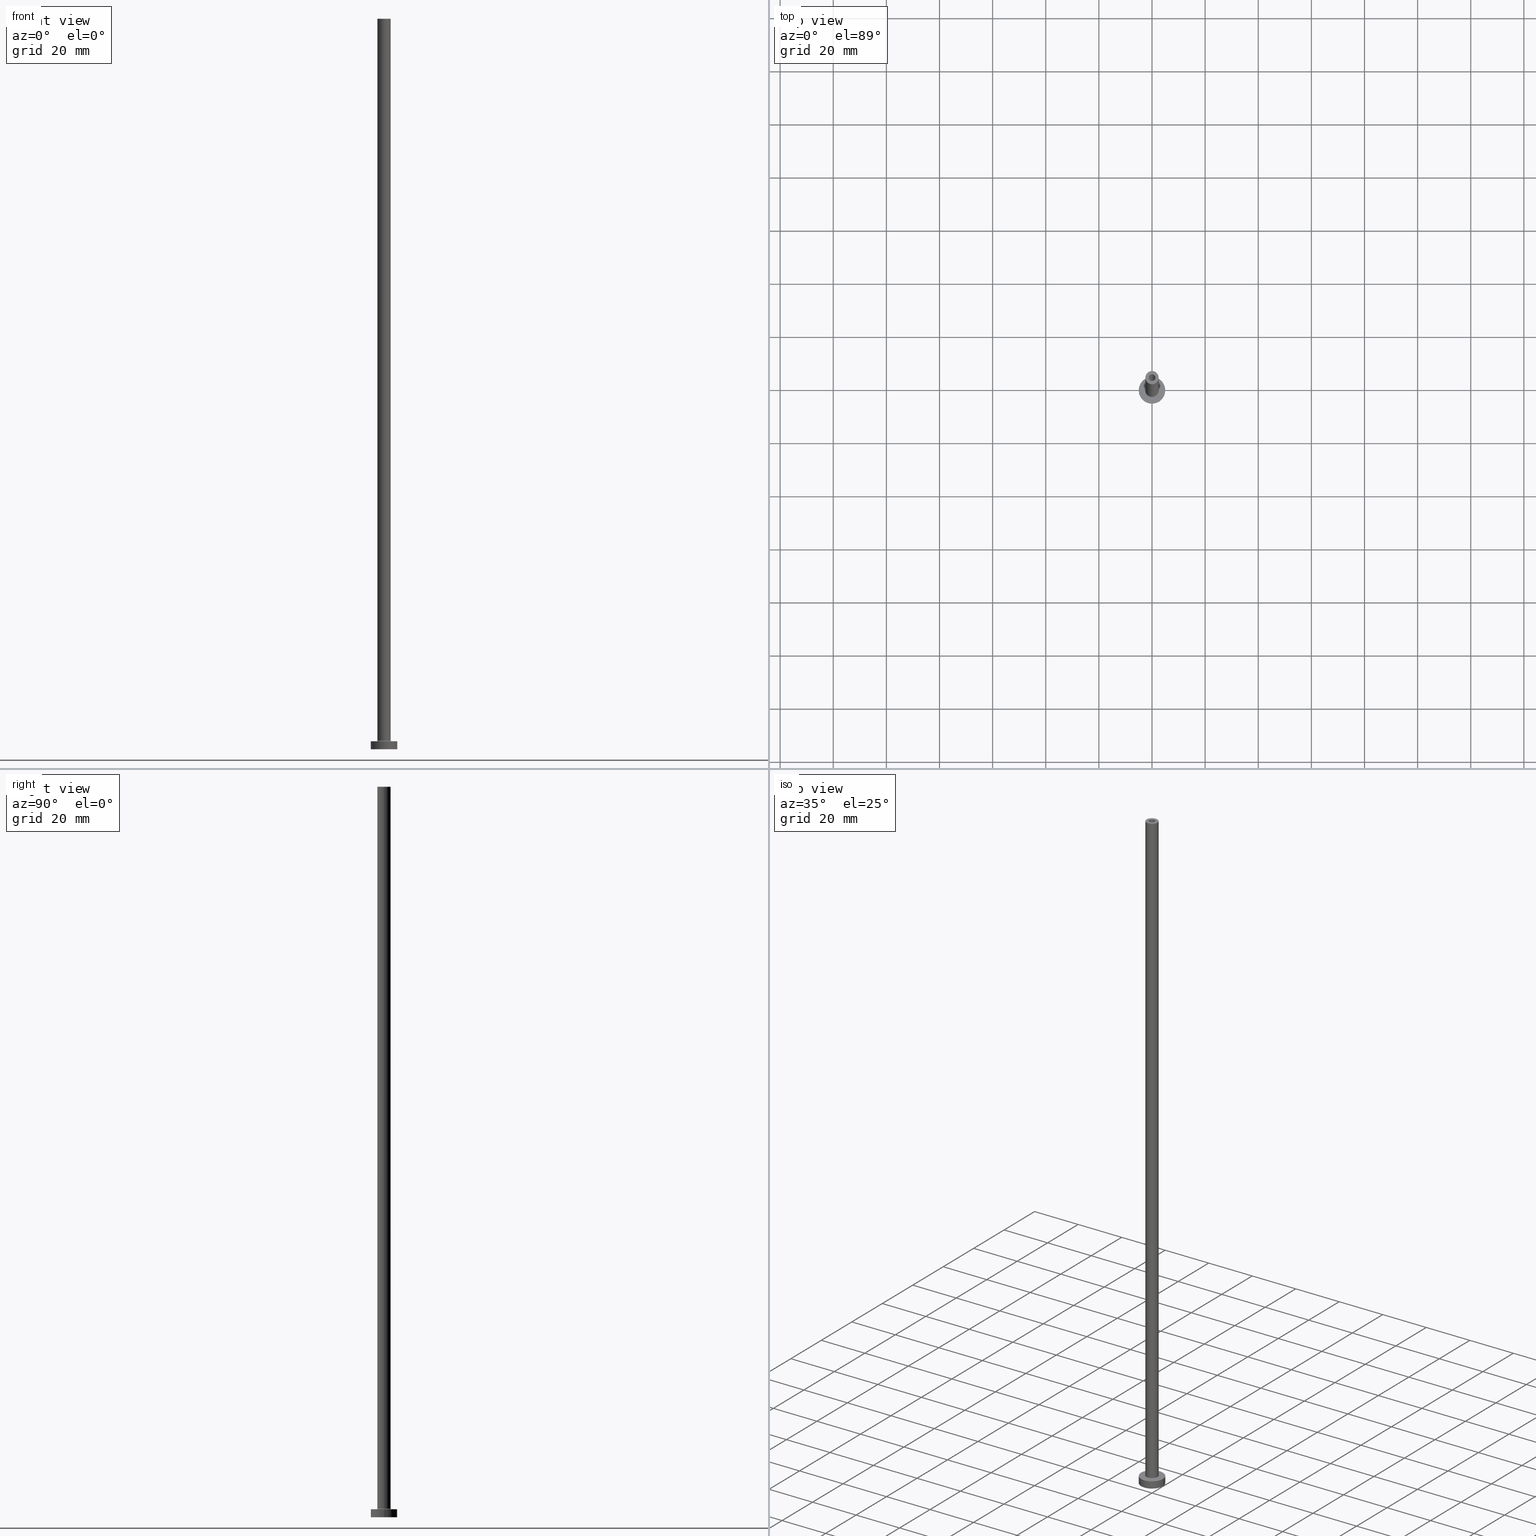
[diagram: canonical four-view strip — front | top / right | iso, engineering-drawing reading convention]
A machine part, canonical four-view strip (front | top / right | iso — engineering-drawing reading convention). The complete STEP part file that produces these views, byte-faithful:
ISO-10303-21;
HEADER;
FILE_DESCRIPTION (( 'STEP AP203' ),
    '1' );
FILE_NAME ('1b13.STEP',
    '2023-02-13T18:04:47',
    ( '' ),
    ( '' ),
    'SwSTEP 2.0',
    'SolidWorks 2019',
    '' );
FILE_SCHEMA (( 'CONFIG_CONTROL_DESIGN' ));
ENDSEC;

DATA;
#1 = VERTEX_POINT ( 'NONE', #81 ) ;
#2 = AXIS2_PLACEMENT_3D ( 'NONE', #13, #190, #305 ) ;
#3 = CARTESIAN_POINT ( 'NONE',  ( -2.799999999999999822, 3.429011037612589276E-16, 3.000000000000012434 ) ) ;
#4 = EDGE_CURVE ( 'NONE', #258, #306, #291, .T. ) ;
#5 = ORIENTED_EDGE ( 'NONE', *, *, #220, .T. ) ;
#6 = CARTESIAN_POINT ( 'NONE',  ( 5.000000000000000000, 6.123233995736766282E-16, 0.000000000000000000 ) ) ;
#7 = LINE ( 'NONE', #285, #134 ) ;
#8 = CIRCLE ( 'NONE', #44, 2.500000000000000000 ) ;
#9 = ORIENTED_EDGE ( 'NONE', *, *, #144, .T. ) ;
#10 = ADVANCED_FACE ( 'NONE', ( #380 ), #368, .F. ) ;
#11 = TOROIDAL_SURFACE ( 'NONE', #442, 2.799999999999999822, 0.2999999999999999889 ) ;
#12 = DIRECTION ( 'NONE',  ( 0.000000000000000000, 0.000000000000000000, 1.000000000000000000 ) ) ;
#13 = CARTESIAN_POINT ( 'NONE',  ( 0.000000000000000000, 0.000000000000000000, 3.000000000000000000 ) ) ;
#14 = VERTEX_POINT ( 'NONE', #226 ) ;
#15 = ORIENTED_EDGE ( 'NONE', *, *, #123, .T. ) ;
#16 = CARTESIAN_POINT ( 'NONE',  ( -5.000000000000000000, 0.000000000000000000, 3.000000000000000000 ) ) ;
#17 = AXIS2_PLACEMENT_3D ( 'NONE', #137, #422, #350 ) ;
#18 = ORIENTED_EDGE ( 'NONE', *, *, #243, .T. ) ;
#19 = ORIENTED_EDGE ( 'NONE', *, *, #179, .T. ) ;
#20 = DATE_TIME_ROLE ( 'creation_date' ) ;
#21 = DIRECTION ( 'NONE',  ( 1.000000000000000000, 0.000000000000000000, 0.000000000000000000 ) ) ;
#22 = EDGE_CURVE ( 'NONE', #14, #107, #239, .T. ) ;
#23 = CARTESIAN_POINT ( 'NONE',  ( -1.399999999999999911, 0.000000000000000000, 240.0000000000000284 ) ) ;
#24 = AXIS2_PLACEMENT_3D ( 'NONE', #257, #192, #194 ) ;
#25 = DATE_AND_TIME ( #202, #117 ) ;
#26 = DIRECTION ( 'NONE',  ( 0.000000000000000000, 0.000000000000000000, -1.000000000000000000 ) ) ;
#27 = DATE_AND_TIME ( #172, #126 ) ;
#28 = DIRECTION ( 'NONE',  ( 0.000000000000000000, 0.000000000000000000, 1.000000000000000000 ) ) ;
#29 = EDGE_CURVE ( 'NONE', #306, #258, #382, .T. ) ;
#30 = DIRECTION ( 'NONE',  ( 0.000000000000000000, 0.000000000000000000, 1.000000000000000000 ) ) ;
#31 = CARTESIAN_POINT ( 'NONE',  ( 5.000000000000000000, 6.123233995736766282E-16, 3.000000000000000000 ) ) ;
#32 = AXIS2_PLACEMENT_3D ( 'NONE', #323, #288, #329 ) ;
#33 = PLANE ( 'NONE',  #60 ) ;
#34 = DIRECTION ( 'NONE',  ( 0.000000000000000000, 0.000000000000000000, 1.000000000000000000 ) ) ;
#35 = AXIS2_PLACEMENT_3D ( 'NONE', #140, #94, #203 ) ;
#36 = DIRECTION ( 'NONE',  ( 1.000000000000000000, 0.000000000000000000, 0.000000000000000000 ) ) ;
#37 = ORIENTED_EDGE ( 'NONE', *, *, #254, .T. ) ;
#38 = AXIS2_PLACEMENT_3D ( 'NONE', #66, #28, #320 ) ;
#39 = AXIS2_PLACEMENT_3D ( 'NONE', #47, #12, #371 ) ;
#40 = DIRECTION ( 'NONE',  ( 1.224646799147353207E-16, 1.000000000000000000, -0.000000000000000000 ) ) ;
#41 = DIRECTION ( 'NONE',  ( 0.000000000000000000, 0.000000000000000000, 1.000000000000000000 ) ) ;
#42 = ORIENTED_EDGE ( 'NONE', *, *, #423, .T. ) ;
#43 = CARTESIAN_POINT ( 'NONE',  ( 0.000000000000000000, 0.000000000000000000, 3.000000000000000000 ) ) ;
#44 = AXIS2_PLACEMENT_3D ( 'NONE', #424, #99, #56 ) ;
#45 = CARTESIAN_POINT ( 'NONE',  ( 1.399999999999999911, 1.714505518806294145E-16, 0.000000000000000000 ) ) ;
#46 = VERTEX_POINT ( 'NONE', #102 ) ;
#47 = CARTESIAN_POINT ( 'NONE',  ( 0.000000000000000000, 0.000000000000000000, 275.0000000000000000 ) ) ;
#48 = ORIENTED_EDGE ( 'NONE', *, *, #29, .F. ) ;
#49 = FACE_BOUND ( 'NONE', #221, .T. ) ;
#50 = ORIENTED_EDGE ( 'NONE', *, *, #251, .T. ) ;
#51 = CARTESIAN_POINT ( 'NONE',  ( 0.000000000000000000, 0.000000000000000000, 275.0000000000000000 ) ) ;
#52 =( GEOMETRIC_REPRESENTATION_CONTEXT ( 3 ) GLOBAL_UNCERTAINTY_ASSIGNED_CONTEXT ( ( #400 ) ) GLOBAL_UNIT_ASSIGNED_CONTEXT ( ( #335, #299, #260 ) ) REPRESENTATION_CONTEXT ( 'NONE', 'WORKASPACE' ) );
#53 = ORIENTED_EDGE ( 'NONE', *, *, #55, .T. ) ;
#54 = VERTEX_POINT ( 'NONE', #23 ) ;
#55 = EDGE_CURVE ( 'NONE', #186, #76, #65, .T. ) ;
#56 = DIRECTION ( 'NONE',  ( 1.000000000000000000, 0.000000000000000000, 0.000000000000000000 ) ) ;
#57 = AXIS2_PLACEMENT_3D ( 'NONE', #420, #177, #351 ) ;
#58 = PERSON_AND_ORGANIZATION ( #307, #405 ) ;
#59 = CYLINDRICAL_SURFACE ( 'NONE', #312, 2.500000000000000000 ) ;
#60 = AXIS2_PLACEMENT_3D ( 'NONE', #429, #353, #255 ) ;
#61 = EDGE_CURVE ( 'NONE', #448, #119, #246, .T. ) ;
#62 = DIRECTION ( 'NONE',  ( 1.000000000000000000, 0.000000000000000000, 0.000000000000000000 ) ) ;
#63 = DIRECTION ( 'NONE',  ( 0.000000000000000000, 0.000000000000000000, -1.000000000000000000 ) ) ;
#64 = APPROVAL_ROLE ( '' ) ;
#65 = LINE ( 'NONE', #311, #104 ) ;
#66 = CARTESIAN_POINT ( 'NONE',  ( 0.000000000000000000, 0.000000000000000000, 3.000000000000000000 ) ) ;
#67 = CIRCLE ( 'NONE', #327, 2.500000000000000000 ) ;
#68 = DIRECTION ( 'NONE',  ( 0.000000000000000000, 0.000000000000000000, -1.000000000000000000 ) ) ;
#69 = EDGE_CURVE ( 'NONE', #107, #357, #8, .T. ) ;
#70 = DIRECTION ( 'NONE',  ( 0.000000000000000000, 0.000000000000000000, 1.000000000000000000 ) ) ;
#71 = ORIENTED_EDGE ( 'NONE', *, *, #292, .F. ) ;
#72 = FACE_OUTER_BOUND ( 'NONE', #129, .T. ) ;
#73 = ORIENTED_EDGE ( 'NONE', *, *, #204, .F. ) ;
#74 = LOCAL_TIME ( 19, 4, 47.00000000000000000, #274 ) ;
#75 = APPROVAL ( #418, 'NEUR�EN�' ) ;
#76 = VERTEX_POINT ( 'NONE', #173 ) ;
#77 = DIRECTION ( 'NONE',  ( 1.000000000000000000, 0.000000000000000000, 0.000000000000000000 ) ) ;
#78 = AXIS2_PLACEMENT_3D ( 'NONE', #282, #235, #381 ) ;
#79 = PLANE ( 'NONE',  #90 ) ;
#80 = VECTOR ( 'NONE', #450, 1000.000000000000000 ) ;
#81 = CARTESIAN_POINT ( 'NONE',  ( 5.000000000000000000, 6.123233995736766282E-16, 3.000000000000000000 ) ) ;
#82 = DIRECTION ( 'NONE',  ( -1.000000000000000000, 0.000000000000000000, 0.000000000000000000 ) ) ;
#83 = EDGE_CURVE ( 'NONE', #46, #298, #316, .T. ) ;
#84 = FACE_BOUND ( 'NONE', #163, .T. ) ;
#85 = ORIENTED_EDGE ( 'NONE', *, *, #22, .T. ) ;
#86 = FACE_OUTER_BOUND ( 'NONE', #308, .T. ) ;
#87 = ORIENTED_EDGE ( 'NONE', *, *, #164, .F. ) ;
#88 = PERSON_AND_ORGANIZATION_ROLE ( 'classification_officer' ) ;
#89 = ADVANCED_FACE ( 'NONE', ( #242 ), #419, .F. ) ;
#90 = AXIS2_PLACEMENT_3D ( 'NONE', #156, #122, #165 ) ;
#91 = EDGE_LOOP ( 'NONE', ( #71, #85, #166, #342 ) ) ;
#92 = DESIGN_CONTEXT ( 'detailed design', #297, 'design' ) ;
#93 = PERSON_AND_ORGANIZATION ( #307, #405 ) ;
#94 = DIRECTION ( 'NONE',  ( 0.000000000000000000, 0.000000000000000000, 1.000000000000000000 ) ) ;
#95 = APPLICATION_PROTOCOL_DEFINITION ( 'international standard', 'config_control_design', 1994, #297 ) ;
#96 = FACE_OUTER_BOUND ( 'NONE', #115, .T. ) ;
#97 = EDGE_CURVE ( 'NONE', #1, #258, #211, .T. ) ;
#98 = PERSON_AND_ORGANIZATION ( #307, #405 ) ;
#99 = DIRECTION ( 'NONE',  ( 0.000000000000000000, 0.000000000000000000, 1.000000000000000000 ) ) ;
#100 = CIRCLE ( 'NONE', #385, 2.500000000000000000 ) ;
#101 = DATE_AND_TIME ( #200, #263 ) ;
#102 = CARTESIAN_POINT ( 'NONE',  ( 1.250000000000000000, 1.530808498934191571E-16, 275.0000000000000000 ) ) ;
#103 = FACE_OUTER_BOUND ( 'NONE', #91, .T. ) ;
#104 = VECTOR ( 'NONE', #26, 1000.000000000000000 ) ;
#105 = DIRECTION ( 'NONE',  ( 0.000000000000000000, -1.000000000000000000, 0.000000000000000000 ) ) ;
#106 = EDGE_CURVE ( 'NONE', #428, #1, #440, .T. ) ;
#107 = VERTEX_POINT ( 'NONE', #346 ) ;
#108 = AXIS2_PLACEMENT_3D ( 'NONE', #325, #362, #77 ) ;
#109 = CC_DESIGN_APPROVAL ( #376, ( #155 ) ) ;
#110 = CARTESIAN_POINT ( 'NONE',  ( 0.000000000000000000, 0.000000000000000000, 275.0000000000000000 ) ) ;
#111 = VERTEX_POINT ( 'NONE', #171 ) ;
#112 = DIRECTION ( 'NONE',  ( -0.000000000000000000, -0.000000000000000000, -1.000000000000000000 ) ) ;
#113 = ORIENTED_EDGE ( 'NONE', *, *, #4, .F. ) ;
#114 = ADVANCED_FACE ( 'NONE', ( #103 ), #386, .T. ) ;
#115 = EDGE_LOOP ( 'NONE', ( #199, #340, #333, #414 ) ) ;
#116 = CIRCLE ( 'NONE', #38, 5.000000000000000000 ) ;
#117 = LOCAL_TIME ( 19, 4, 47.00000000000000000, #207 ) ;
#118 = CARTESIAN_POINT ( 'NONE',  ( 1.250000000000000000, 1.530808498934191571E-16, 240.0000000000000284 ) ) ;
#119 = VERTEX_POINT ( 'NONE', #417 ) ;
#120 = DIRECTION ( 'NONE',  ( 0.000000000000000000, 0.000000000000000000, 1.000000000000000000 ) ) ;
#121 = ORIENTED_EDGE ( 'NONE', *, *, #452, .T. ) ;
#122 = DIRECTION ( 'NONE',  ( 0.000000000000000000, 0.000000000000000000, 1.000000000000000000 ) ) ;
#123 = EDGE_CURVE ( 'NONE', #1, #428, #116, .T. ) ;
#124 = ORIENTED_EDGE ( 'NONE', *, *, #237, .F. ) ;
#125 = CIRCLE ( 'NONE', #32, 1.399999999999999911 ) ;
#126 = LOCAL_TIME ( 19, 4, 47.00000000000000000, #349 ) ;
#127 = DIRECTION ( 'NONE',  ( -0.000000000000000000, -0.000000000000000000, -1.000000000000000000 ) ) ;
#128 = ORIENTED_EDGE ( 'NONE', *, *, #251, .F. ) ;
#129 = EDGE_LOOP ( 'NONE', ( #48, #113 ) ) ;
#130 = ADVANCED_FACE ( 'NONE', ( #143 ), #314, .F. ) ;
#131 = FACE_OUTER_BOUND ( 'NONE', #338, .T. ) ;
#132 = CARTESIAN_POINT ( 'NONE',  ( 0.000000000000000000, 0.000000000000000000, 0.000000000000000000 ) ) ;
#133 = APPROVAL_ROLE ( '' ) ;
#134 = VECTOR ( 'NONE', #293, 1000.000000000000000 ) ;
#135 = CARTESIAN_POINT ( 'NONE',  ( 2.500000000000000000, 3.061616997868383141E-16, 275.0000000000000000 ) ) ;
#136 = CARTESIAN_POINT ( 'NONE',  ( 0.000000000000000000, 0.000000000000000000, 3.000000000000000000 ) ) ;
#137 = CARTESIAN_POINT ( 'NONE',  ( 0.000000000000000000, 0.000000000000000000, 0.000000000000000000 ) ) ;
#138 = EDGE_CURVE ( 'NONE', #411, #14, #100, .T. ) ;
#139 = APPROVAL_DATE_TIME ( #27, #376 ) ;
#140 = CARTESIAN_POINT ( 'NONE',  ( 0.000000000000000000, 0.000000000000000000, 3.000000000000000000 ) ) ;
#141 = APPROVAL_PERSON_ORGANIZATION ( #93, #75, #176 ) ;
#142 = APPLICATION_PROTOCOL_DEFINITION ( 'international standard', 'config_control_design', 1994, #181 ) ;
#143 = FACE_OUTER_BOUND ( 'NONE', #290, .T. ) ;
#144 = EDGE_CURVE ( 'NONE', #111, #267, #197, .T. ) ;
#145 = DIRECTION ( 'NONE',  ( 0.000000000000000000, 0.000000000000000000, 1.000000000000000000 ) ) ;
#146 = CARTESIAN_POINT ( 'NONE',  ( -5.000000000000000000, 0.000000000000000000, 3.000000000000000000 ) ) ;
#147 = EDGE_CURVE ( 'NONE', #119, #448, #427, .T. ) ;
#148 = EDGE_LOOP ( 'NONE', ( #87, #403 ) ) ;
#149 = FACE_OUTER_BOUND ( 'NONE', #223, .T. ) ;
#150 = ORIENTED_EDGE ( 'NONE', *, *, #123, .F. ) ;
#151 = AXIS2_PLACEMENT_3D ( 'NONE', #159, #300, #82 ) ;
#152 = CARTESIAN_POINT ( 'NONE',  ( 2.799999999999999822, 0.000000000000000000, 3.300000000000025135 ) ) ;
#153 = ORIENTED_EDGE ( 'NONE', *, *, #29, .T. ) ;
#154 = AXIS2_PLACEMENT_3D ( 'NONE', #393, #70, #214 ) ;
#155 = SECURITY_CLASSIFICATION ( '', '', #281 ) ;
#156 = CARTESIAN_POINT ( 'NONE',  ( 0.000000000000000000, 0.000000000000000000, 3.000000000000000000 ) ) ;
#157 = ORIENTED_EDGE ( 'NONE', *, *, #61, .F. ) ;
#158 = ADVANCED_FACE ( 'NONE', ( #96 ), #59, .T. ) ;
#159 = CARTESIAN_POINT ( 'NONE',  ( 0.000000000000000000, 0.000000000000000000, 275.0000000000000000 ) ) ;
#160 = ORIENTED_EDGE ( 'NONE', *, *, #254, .F. ) ;
#161 = APPROVAL_PERSON_ORGANIZATION ( #279, #317, #133 ) ;
#162 = CARTESIAN_POINT ( 'NONE',  ( -1.399999999999999911, 0.000000000000000000, 243.9597979746447152 ) ) ;
#163 = EDGE_LOOP ( 'NONE', ( #191, #42 ) ) ;
#164 = EDGE_CURVE ( 'NONE', #186, #46, #415, .T. ) ;
#165 = DIRECTION ( 'NONE',  ( 1.000000000000000000, 0.000000000000000000, -0.000000000000000000 ) ) ;
#166 = ORIENTED_EDGE ( 'NONE', *, *, #69, .T. ) ;
#167 = APPROVAL_DATE_TIME ( #25, #75 ) ;
#168 = DIRECTION ( 'NONE',  ( 1.000000000000000000, 0.000000000000000000, 0.000000000000000000 ) ) ;
#169 = AXIS2_PLACEMENT_3D ( 'NONE', #152, #105, #247 ) ;
#170 = PERSON_AND_ORGANIZATION ( #307, #405 ) ;
#171 = CARTESIAN_POINT ( 'NONE',  ( 2.799999999999999822, 0.000000000000000000, 3.000000000000012434 ) ) ;
#172 = CALENDAR_DATE ( 2023, 13, 2 ) ;
#173 = CARTESIAN_POINT ( 'NONE',  ( -1.250000000000000000, 0.000000000000000000, 240.0000000000000284 ) ) ;
#174 = COORDINATED_UNIVERSAL_TIME_OFFSET ( 1, 0, .AHEAD. ) ;
#175 = CARTESIAN_POINT ( 'NONE',  ( 0.000000000000000000, 0.000000000000000000, 275.0000000000000000 ) ) ;
#176 = APPROVAL_ROLE ( '' ) ;
#177 = DIRECTION ( 'NONE',  ( 0.000000000000000000, 0.000000000000000000, -1.000000000000000000 ) ) ;
#178 = CC_DESIGN_APPROVAL ( #75, ( #341 ) ) ;
#179 = EDGE_CURVE ( 'NONE', #54, #443, #378, .T. ) ;
#180 = FACE_OUTER_BOUND ( 'NONE', #302, .T. ) ;
#181 = APPLICATION_CONTEXT ( 'configuration controlled 3d designs of mechanical parts and assemblies' ) ;
#182 = CARTESIAN_POINT ( 'NONE',  ( 0.000000000000000000, 0.000000000000000000, 3.300000000000025135 ) ) ;
#183 = CIRCLE ( 'NONE', #458, 0.2999999999999999334 ) ;
#184 = DIRECTION ( 'NONE',  ( -1.000000000000000000, 1.224646799147353207E-16, 0.000000000000000000 ) ) ;
#185 = DIRECTION ( 'NONE',  ( -0.000000000000000000, -0.000000000000000000, -1.000000000000000000 ) ) ;
#186 = VERTEX_POINT ( 'NONE', #213 ) ;
#187 = FACE_OUTER_BOUND ( 'NONE', #336, .T. ) ;
#188 = ORIENTED_EDGE ( 'NONE', *, *, #147, .T. ) ;
#189 = CC_DESIGN_PERSON_AND_ORGANIZATION_ASSIGNMENT ( #347, #272, ( #390 ) ) ;
#190 = DIRECTION ( 'NONE',  ( -0.000000000000000000, -0.000000000000000000, -1.000000000000000000 ) ) ;
#191 = ORIENTED_EDGE ( 'NONE', *, *, #337, .T. ) ;
#192 = DIRECTION ( 'NONE',  ( 0.000000000000000000, 0.000000000000000000, 1.000000000000000000 ) ) ;
#193 = ORIENTED_EDGE ( 'NONE', *, *, #204, .T. ) ;
#194 = DIRECTION ( 'NONE',  ( 1.000000000000000000, 0.000000000000000000, -0.000000000000000000 ) ) ;
#195 = EDGE_CURVE ( 'NONE', #357, #107, #67, .T. ) ;
#196 = EDGE_LOOP ( 'NONE', ( #363, #426, #53, #201 ) ) ;
#197 = CIRCLE ( 'NONE', #218, 2.799999999999999822 ) ;
#198 = DIRECTION ( 'NONE',  ( 0.000000000000000000, 0.000000000000000000, -1.000000000000000000 ) ) ;
#199 = ORIENTED_EDGE ( 'NONE', *, *, #22, .F. ) ;
#200 = CALENDAR_DATE ( 2023, 13, 2 ) ;
#201 = ORIENTED_EDGE ( 'NONE', *, *, #423, .F. ) ;
#202 = CALENDAR_DATE ( 2023, 13, 2 ) ;
#203 = DIRECTION ( 'NONE',  ( 1.000000000000000000, 0.000000000000000000, 0.000000000000000000 ) ) ;
#204 = EDGE_CURVE ( 'NONE', #443, #54, #125, .T. ) ;
#205 = CIRCLE ( 'NONE', #169, 0.2999999999999999334 ) ;
#206 = CARTESIAN_POINT ( 'NONE',  ( 0.000000000000000000, 0.000000000000000000, 275.0000000000000000 ) ) ;
#207 = COORDINATED_UNIVERSAL_TIME_OFFSET ( 1, 0, .AHEAD. ) ;
#208 = DIRECTION ( 'NONE',  ( -1.000000000000000000, 0.000000000000000000, 0.000000000000000000 ) ) ;
#209 = PERSON_AND_ORGANIZATION_ROLE ( 'creator' ) ;
#210 = DIRECTION ( 'NONE',  ( 1.000000000000000000, 0.000000000000000000, 0.000000000000000000 ) ) ;
#211 = LINE ( 'NONE', #31, #461 ) ;
#212 = CIRCLE ( 'NONE', #391, 1.250000000000000000 ) ;
#213 = CARTESIAN_POINT ( 'NONE',  ( -1.250000000000000000, 0.000000000000000000, 275.0000000000000000 ) ) ;
#214 = DIRECTION ( 'NONE',  ( 1.000000000000000000, 0.000000000000000000, 0.000000000000000000 ) ) ;
#215 = ORIENTED_EDGE ( 'NONE', *, *, #164, .T. ) ;
#216 = ADVANCED_FACE ( 'NONE', ( #395, #72 ), #33, .F. ) ;
#217 = CARTESIAN_POINT ( 'NONE',  ( 0.000000000000000000, 0.000000000000000000, 3.000000000000000000 ) ) ;
#218 = AXIS2_PLACEMENT_3D ( 'NONE', #136, #275, #168 ) ;
#219 = FACE_BOUND ( 'NONE', #148, .T. ) ;
#220 = EDGE_CURVE ( 'NONE', #267, #111, #434, .T. ) ;
#221 = EDGE_LOOP ( 'NONE', ( #9, #5 ) ) ;
#222 = FACE_OUTER_BOUND ( 'NONE', #396, .T. ) ;
#223 = EDGE_LOOP ( 'NONE', ( #256, #37, #265, #124 ) ) ;
#224 = AXIS2_PLACEMENT_3D ( 'NONE', #446, #264, #407 ) ;
#225 = DIRECTION ( 'NONE',  ( 1.000000000000000000, 0.000000000000000000, -0.000000000000000000 ) ) ;
#226 = CARTESIAN_POINT ( 'NONE',  ( 2.500000000000000000, 3.061616997868383141E-16, 275.0000000000000000 ) ) ;
#227 = CC_DESIGN_DATE_AND_TIME_ASSIGNMENT ( #459, #20, ( #390 ) ) ;
#228 = DIRECTION ( 'NONE',  ( 1.000000000000000000, 0.000000000000000000, 0.000000000000000000 ) ) ;
#229 = ORIENTED_EDGE ( 'NONE', *, *, #292, .T. ) ;
#230 = CYLINDRICAL_SURFACE ( 'NONE', #2, 5.000000000000000000 ) ;
#231 = ORIENTED_EDGE ( 'NONE', *, *, #147, .F. ) ;
#232 = VECTOR ( 'NONE', #112, 1000.000000000000000 ) ;
#233 = COORDINATED_UNIVERSAL_TIME_OFFSET ( 1, 0, .AHEAD. ) ;
#234 = DIRECTION ( 'NONE',  ( 1.000000000000000000, 0.000000000000000000, 0.000000000000000000 ) ) ;
#235 = DIRECTION ( 'NONE',  ( 0.000000000000000000, 0.000000000000000000, 1.000000000000000000 ) ) ;
#236 = MANIFOLD_SOLID_BREP ( 'Odebrat vysunut�m4', #319 ) ;
#237 = EDGE_CURVE ( 'NONE', #107, #111, #205, .T. ) ;
#238 = PERSON_AND_ORGANIZATION ( #307, #405 ) ;
#239 = LINE ( 'NONE', #135, #432 ) ;
#240 = AXIS2_PLACEMENT_3D ( 'NONE', #301, #401, #437 ) ;
#241 = APPROVAL_PERSON_ORGANIZATION ( #238, #376, #64 ) ;
#242 = FACE_OUTER_BOUND ( 'NONE', #196, .T. ) ;
#243 = EDGE_CURVE ( 'NONE', #443, #448, #399, .T. ) ;
#244 = DIRECTION ( 'NONE',  ( -0.000000000000000000, -0.000000000000000000, -1.000000000000000000 ) ) ;
#245 = CARTESIAN_POINT ( 'NONE',  ( 0.000000000000000000, 0.000000000000000000, 243.9597979746447152 ) ) ;
#246 = CIRCLE ( 'NONE', #412, 1.399999999999999911 ) ;
#247 = DIRECTION ( 'NONE',  ( 0.000000000000000000, 0.000000000000000000, -1.000000000000000000 ) ) ;
#248 = CIRCLE ( 'NONE', #39, 1.250000000000000000 ) ;
#249 = CARTESIAN_POINT ( 'NONE',  ( 0.000000000000000000, 0.000000000000000000, 240.0000000000000284 ) ) ;
#250 = EDGE_LOOP ( 'NONE', ( #150, #374, #326, #128 ) ) ;
#251 = EDGE_CURVE ( 'NONE', #428, #306, #360, .T. ) ;
#252 = ORIENTED_EDGE ( 'NONE', *, *, #69, .F. ) ;
#253 = AXIS2_PLACEMENT_3D ( 'NONE', #51, #120, #225 ) ;
#254 = EDGE_CURVE ( 'NONE', #357, #267, #183, .T. ) ;
#255 = DIRECTION ( 'NONE',  ( 1.000000000000000000, 0.000000000000000000, -0.000000000000000000 ) ) ;
#256 = ORIENTED_EDGE ( 'NONE', *, *, #195, .F. ) ;
#257 = CARTESIAN_POINT ( 'NONE',  ( 0.000000000000000000, 0.000000000000000000, 240.0000000000000284 ) ) ;
#258 = VERTEX_POINT ( 'NONE', #6 ) ;
#259 = AXIS2_PLACEMENT_3D ( 'NONE', #132, #408, #234 ) ;
#260 =( NAMED_UNIT ( * ) SI_UNIT ( $, .STERADIAN. ) SOLID_ANGLE_UNIT ( ) );
#261 = ORIENTED_EDGE ( 'NONE', *, *, #106, .F. ) ;
#262 = PRODUCT_RELATED_PRODUCT_CATEGORY ( 'detail', '', ( #397 ) ) ;
#263 = LOCAL_TIME ( 19, 4, 47.00000000000000000, #174 ) ;
#264 = DIRECTION ( 'NONE',  ( 0.000000000000000000, 0.000000000000000000, 1.000000000000000000 ) ) ;
#265 = ORIENTED_EDGE ( 'NONE', *, *, #144, .F. ) ;
#266 = PLANE ( 'NONE',  #24 ) ;
#267 = VERTEX_POINT ( 'NONE', #3 ) ;
#268 = DIRECTION ( 'NONE',  ( 0.000000000000000000, 0.000000000000000000, 1.000000000000000000 ) ) ;
#269 = ORIENTED_EDGE ( 'NONE', *, *, #452, .F. ) ;
#270 = AXIS2_PLACEMENT_3D ( 'NONE', #245, #63, #453 ) ;
#271 = LOCAL_TIME ( 19, 4, 47.00000000000000000, #233 ) ;
#272 = PERSON_AND_ORGANIZATION_ROLE ( 'creator' ) ;
#273 = DIRECTION ( 'NONE',  ( -0.000000000000000000, -0.000000000000000000, -1.000000000000000000 ) ) ;
#274 = COORDINATED_UNIVERSAL_TIME_OFFSET ( 1, 0, .AHEAD. ) ;
#275 = DIRECTION ( 'NONE',  ( -0.000000000000000000, -0.000000000000000000, -1.000000000000000000 ) ) ;
#276 = CARTESIAN_POINT ( 'NONE',  ( 0.000000000000000000, 0.000000000000000000, 275.0000000000000000 ) ) ;
#277 = CC_DESIGN_PERSON_AND_ORGANIZATION_ASSIGNMENT ( #58, #313, ( #341 ) ) ;
#278 = AXIS2_PLACEMENT_3D ( 'NONE', #43, #127, #413 ) ;
#279 = PERSON_AND_ORGANIZATION ( #307, #405 ) ;
#280 = CARTESIAN_POINT ( 'NONE',  ( 0.000000000000000000, 0.000000000000000000, 275.0000000000000000 ) ) ;
#281 = SECURITY_CLASSIFICATION_LEVEL ( 'unclassified' ) ;
#282 = CARTESIAN_POINT ( 'NONE',  ( 0.000000000000000000, 0.000000000000000000, 0.000000000000000000 ) ) ;
#283 = DIRECTION ( 'NONE',  ( 1.000000000000000000, 0.000000000000000000, 0.000000000000000000 ) ) ;
#284 = VECTOR ( 'NONE', #198, 1000.000000000000000 ) ;
#285 = CARTESIAN_POINT ( 'NONE',  ( -2.500000000000000000, 0.000000000000000000, 275.0000000000000000 ) ) ;
#286 = ADVANCED_FACE ( 'NONE', ( #149 ), #11, .F. ) ;
#287 = ORIENTED_EDGE ( 'NONE', *, *, #83, .T. ) ;
#288 = DIRECTION ( 'NONE',  ( 0.000000000000000000, 0.000000000000000000, 1.000000000000000000 ) ) ;
#289 = ORIENTED_EDGE ( 'NONE', *, *, #106, .T. ) ;
#290 = EDGE_LOOP ( 'NONE', ( #19, #18, #447, #269 ) ) ;
#291 = CIRCLE ( 'NONE', #259, 5.000000000000000000 ) ;
#292 = EDGE_CURVE ( 'NONE', #14, #411, #352, .T. ) ;
#293 = DIRECTION ( 'NONE',  ( -0.000000000000000000, -0.000000000000000000, -1.000000000000000000 ) ) ;
#294 = ORIENTED_EDGE ( 'NONE', *, *, #138, .T. ) ;
#295 = TOROIDAL_SURFACE ( 'NONE', #154, 2.799999999999999822, 0.2999999999999999889 ) ;
#296 = PLANE ( 'NONE',  #253 ) ;
#297 = APPLICATION_CONTEXT ( 'configuration controlled 3d designs of mechanical parts and assemblies' ) ;
#298 = VERTEX_POINT ( 'NONE', #118 ) ;
#299 =( NAMED_UNIT ( * ) PLANE_ANGLE_UNIT ( ) SI_UNIT ( $, .RADIAN. ) );
#300 = DIRECTION ( 'NONE',  ( 0.000000000000000000, 0.000000000000000000, -1.000000000000000000 ) ) ;
#301 = CARTESIAN_POINT ( 'NONE',  ( 0.000000000000000000, 0.000000000000000000, 243.9597979746447152 ) ) ;
#302 = EDGE_LOOP ( 'NONE', ( #160, #252, #344, #433 ) ) ;
#303 = AXIS2_PLACEMENT_3D ( 'NONE', #175, #244, #460 ) ;
#304 = AXIS2_PLACEMENT_3D ( 'NONE', #451, #30, #62 ) ;
#305 = DIRECTION ( 'NONE',  ( -1.000000000000000000, 0.000000000000000000, 0.000000000000000000 ) ) ;
#306 = VERTEX_POINT ( 'NONE', #356 ) ;
#307 = PERSON ( 'NEUR�EN�', 'NEUR�EN�', 'NEUR�EN�', ('NEUR�EN�'), ('NEUR�EN�'), ('NEUR�EN�') ) ;
#308 = EDGE_LOOP ( 'NONE', ( #289, #15 ) ) ;
#309 = CC_DESIGN_PERSON_AND_ORGANIZATION_ASSIGNMENT ( #170, #209, ( #341 ) ) ;
#310 = PERSON_AND_ORGANIZATION ( #307, #405 ) ;
#311 = CARTESIAN_POINT ( 'NONE',  ( -1.250000000000000000, 0.000000000000000000, 275.0000000000000000 ) ) ;
#312 = AXIS2_PLACEMENT_3D ( 'NONE', #206, #348, #208 ) ;
#313 = PERSON_AND_ORGANIZATION_ROLE ( 'design_supplier' ) ;
#314 = CYLINDRICAL_SURFACE ( 'NONE', #270, 1.399999999999999911 ) ;
#315 = APPROVAL_STATUS ( 'not_yet_approved' ) ;
#316 = LINE ( 'NONE', #454, #80 ) ;
#317 = APPROVAL ( #315, 'NEUR�EN�' ) ;
#318 = CALENDAR_DATE ( 2023, 13, 2 ) ;
#319 = CLOSED_SHELL ( 'NONE', ( #10, #130, #286, #114, #394, #402, #409, #216, #158, #436, #330, #343, #445, #89 ) ) ;
#320 = DIRECTION ( 'NONE',  ( 1.000000000000000000, 0.000000000000000000, 0.000000000000000000 ) ) ;
#321 = CALENDAR_DATE ( 2023, 13, 2 ) ;
#322 = DIRECTION ( 'NONE',  ( -0.000000000000000000, -0.000000000000000000, -1.000000000000000000 ) ) ;
#323 = CARTESIAN_POINT ( 'NONE',  ( 0.000000000000000000, 0.000000000000000000, 240.0000000000000284 ) ) ;
#324 = EDGE_CURVE ( 'NONE', #411, #357, #7, .T. ) ;
#325 = CARTESIAN_POINT ( 'NONE',  ( 0.000000000000000000, 0.000000000000000000, 240.0000000000000284 ) ) ;
#326 = ORIENTED_EDGE ( 'NONE', *, *, #4, .T. ) ;
#327 = AXIS2_PLACEMENT_3D ( 'NONE', #182, #145, #36 ) ;
#328 = EDGE_LOOP ( 'NONE', ( #231, #157 ) ) ;
#329 = DIRECTION ( 'NONE',  ( 1.000000000000000000, 0.000000000000000000, 0.000000000000000000 ) ) ;
#330 = ADVANCED_FACE ( 'NONE', ( #180 ), #295, .F. ) ;
#331 = DIRECTION ( 'NONE',  ( 1.000000000000000000, 0.000000000000000000, 0.000000000000000000 ) ) ;
#332 = CARTESIAN_POINT ( 'NONE',  ( -2.500000000000000000, 0.000000000000000000, 3.300000000000025135 ) ) ;
#333 = ORIENTED_EDGE ( 'NONE', *, *, #324, .T. ) ;
#334 = AXIS2_PLACEMENT_3D ( 'NONE', #110, #34, #435 ) ;
#335 =( LENGTH_UNIT ( ) NAMED_UNIT ( * ) SI_UNIT ( .MILLI., .METRE. ) );
#336 = EDGE_LOOP ( 'NONE', ( #377, #261, #50, #153 ) ) ;
#337 = EDGE_CURVE ( 'NONE', #76, #298, #212, .T. ) ;
#338 = EDGE_LOOP ( 'NONE', ( #439, #73 ) ) ;
#339 = FACE_OUTER_BOUND ( 'NONE', #250, .T. ) ;
#340 = ORIENTED_EDGE ( 'NONE', *, *, #138, .F. ) ;
#341 = PRODUCT_DEFINITION_FORMATION_WITH_SPECIFIED_SOURCE ( 'LIBOVOLN�', '', #397, .NOT_KNOWN. ) ;
#342 = ORIENTED_EDGE ( 'NONE', *, *, #324, .F. ) ;
#343 = ADVANCED_FACE ( 'NONE', ( #364 ), #410, .F. ) ;
#344 = ORIENTED_EDGE ( 'NONE', *, *, #237, .T. ) ;
#345 = APPROVAL_STATUS ( 'not_yet_approved' ) ;
#346 = CARTESIAN_POINT ( 'NONE',  ( 2.500000000000000000, 3.061616997868383141E-16, 3.300000000000025135 ) ) ;
#347 = PERSON_AND_ORGANIZATION ( #307, #405 ) ;
#348 = DIRECTION ( 'NONE',  ( -0.000000000000000000, -0.000000000000000000, -1.000000000000000000 ) ) ;
#349 = COORDINATED_UNIVERSAL_TIME_OFFSET ( 1, 0, .AHEAD. ) ;
#350 = DIRECTION ( 'NONE',  ( 1.000000000000000000, 0.000000000000000000, 0.000000000000000000 ) ) ;
#351 = DIRECTION ( 'NONE',  ( -1.000000000000000000, 0.000000000000000000, 0.000000000000000000 ) ) ;
#352 = CIRCLE ( 'NONE', #334, 2.500000000000000000 ) ;
#353 = DIRECTION ( 'NONE',  ( 0.000000000000000000, 0.000000000000000000, 1.000000000000000000 ) ) ;
#354 = CC_DESIGN_DATE_AND_TIME_ASSIGNMENT ( #455, #416, ( #155 ) ) ;
#355 = CARTESIAN_POINT ( 'NONE',  ( -2.799999999999999822, 3.429011037612588783E-16, 3.300000000000025135 ) ) ;
#356 = CARTESIAN_POINT ( 'NONE',  ( -5.000000000000000000, 0.000000000000000000, 0.000000000000000000 ) ) ;
#357 = VERTEX_POINT ( 'NONE', #332 ) ;
#358 = CC_DESIGN_PERSON_AND_ORGANIZATION_ASSIGNMENT ( #310, #449, ( #397 ) ) ;
#359 = AXIS2_PLACEMENT_3D ( 'NONE', #276, #388, #283 ) ;
#360 = LINE ( 'NONE', #146, #232 ) ;
#361 = ORIENTED_EDGE ( 'NONE', *, *, #337, .F. ) ;
#362 = DIRECTION ( 'NONE',  ( 0.000000000000000000, 0.000000000000000000, 1.000000000000000000 ) ) ;
#363 = ORIENTED_EDGE ( 'NONE', *, *, #83, .F. ) ;
#364 = FACE_OUTER_BOUND ( 'NONE', #406, .T. ) ;
#365 = CARTESIAN_POINT ( 'NONE',  ( 1.399999999999999911, 1.714505518806294145E-16, 240.0000000000000284 ) ) ;
#366 = PRODUCT_DEFINITION_SHAPE ( 'NONE', 'NONE',  #390 ) ;
#367 = CIRCLE ( 'NONE', #224, 1.250000000000000000 ) ;
#368 = CYLINDRICAL_SURFACE ( 'NONE', #151, 1.250000000000000000 ) ;
#369 = VECTOR ( 'NONE', #68, 1000.000000000000000 ) ;
#370 = EDGE_CURVE ( 'NONE', #46, #186, #248, .T. ) ;
#371 = DIRECTION ( 'NONE',  ( 1.000000000000000000, 0.000000000000000000, 0.000000000000000000 ) ) ;
#372 = ORIENTED_EDGE ( 'NONE', *, *, #55, .F. ) ;
#373 = LINE ( 'NONE', #162, #284 ) ;
#374 = ORIENTED_EDGE ( 'NONE', *, *, #97, .T. ) ;
#375 = CARTESIAN_POINT ( 'NONE',  ( -2.500000000000000000, 0.000000000000000000, 275.0000000000000000 ) ) ;
#376 = APPROVAL ( #345, 'NEUR�EN�' ) ;
#377 = ORIENTED_EDGE ( 'NONE', *, *, #97, .F. ) ;
#378 = CIRCLE ( 'NONE', #108, 1.399999999999999911 ) ;
#379 = SHAPE_DEFINITION_REPRESENTATION ( #366, #404 ) ;
#380 = FACE_OUTER_BOUND ( 'NONE', #438, .T. ) ;
#381 = DIRECTION ( 'NONE',  ( 1.000000000000000000, 0.000000000000000000, 0.000000000000000000 ) ) ;
#382 = CIRCLE ( 'NONE', #78, 5.000000000000000000 ) ;
#383 = MECHANICAL_CONTEXT ( 'NONE', #181, 'mechanical' ) ;
#384 = CARTESIAN_POINT ( 'NONE',  ( 0.000000000000000000, 0.000000000000000000, 0.000000000000000000 ) ) ;
#385 = AXIS2_PLACEMENT_3D ( 'NONE', #280, #389, #21 ) ;
#386 = CYLINDRICAL_SURFACE ( 'NONE', #303, 2.500000000000000000 ) ;
#387 = APPROVAL_DATE_TIME ( #101, #317 ) ;
#388 = DIRECTION ( 'NONE',  ( 0.000000000000000000, 0.000000000000000000, 1.000000000000000000 ) ) ;
#389 = DIRECTION ( 'NONE',  ( 0.000000000000000000, 0.000000000000000000, 1.000000000000000000 ) ) ;
#390 = PRODUCT_DEFINITION ( 'NEZN�M�', '', #341, #92 ) ;
#391 = AXIS2_PLACEMENT_3D ( 'NONE', #249, #268, #228 ) ;
#392 = CARTESIAN_POINT ( 'NONE',  ( 1.399999999999999911, 1.714505518806294145E-16, 243.9597979746447152 ) ) ;
#393 = CARTESIAN_POINT ( 'NONE',  ( 0.000000000000000000, 0.000000000000000000, 3.300000000000025135 ) ) ;
#394 = ADVANCED_FACE ( 'NONE', ( #339 ), #230, .T. ) ;
#395 = FACE_BOUND ( 'NONE', #328, .T. ) ;
#396 = EDGE_LOOP ( 'NONE', ( #294, #229 ) ) ;
#397 = PRODUCT ( '1b13', '1b13', '', ( #383 ) ) ;
#398 = AXIS2_PLACEMENT_3D ( 'NONE', #217, #185, #425 ) ;
#399 = LINE ( 'NONE', #392, #369 ) ;
#400 = UNCERTAINTY_MEASURE_WITH_UNIT (LENGTH_MEASURE( 1.000000000000000082E-05 ), #335, 'distance_accuracy_value', 'NONE');
#401 = DIRECTION ( 'NONE',  ( 0.000000000000000000, 0.000000000000000000, -1.000000000000000000 ) ) ;
#402 = ADVANCED_FACE ( 'NONE', ( #187 ), #441, .T. ) ;
#403 = ORIENTED_EDGE ( 'NONE', *, *, #370, .F. ) ;
#404 = ADVANCED_BREP_SHAPE_REPRESENTATION ( '1b13', ( #236, #304 ), #52 ) ;
#405 = ORGANIZATION ( 'NEUR�EN�', 'NEUR�EN�', '' ) ;
#406 = EDGE_LOOP ( 'NONE', ( #430, #193, #121, #188 ) ) ;
#407 = DIRECTION ( 'NONE',  ( 1.000000000000000000, 0.000000000000000000, 0.000000000000000000 ) ) ;
#408 = DIRECTION ( 'NONE',  ( 0.000000000000000000, 0.000000000000000000, 1.000000000000000000 ) ) ;
#409 = ADVANCED_FACE ( 'NONE', ( #49, #86 ), #79, .T. ) ;
#410 = CYLINDRICAL_SURFACE ( 'NONE', #240, 1.399999999999999911 ) ;
#411 = VERTEX_POINT ( 'NONE', #375 ) ;
#412 = AXIS2_PLACEMENT_3D ( 'NONE', #384, #456, #210 ) ;
#413 = DIRECTION ( 'NONE',  ( -1.000000000000000000, 0.000000000000000000, 0.000000000000000000 ) ) ;
#414 = ORIENTED_EDGE ( 'NONE', *, *, #195, .T. ) ;
#415 = CIRCLE ( 'NONE', #359, 1.250000000000000000 ) ;
#416 = DATE_TIME_ROLE ( 'classification_date' ) ;
#417 = CARTESIAN_POINT ( 'NONE',  ( -1.399999999999999911, 0.000000000000000000, 0.000000000000000000 ) ) ;
#418 = APPROVAL_STATUS ( 'not_yet_approved' ) ;
#419 = CYLINDRICAL_SURFACE ( 'NONE', #57, 1.250000000000000000 ) ;
#420 = CARTESIAN_POINT ( 'NONE',  ( 0.000000000000000000, 0.000000000000000000, 275.0000000000000000 ) ) ;
#421 = CC_DESIGN_APPROVAL ( #317, ( #390 ) ) ;
#422 = DIRECTION ( 'NONE',  ( -0.000000000000000000, -0.000000000000000000, -1.000000000000000000 ) ) ;
#423 = EDGE_CURVE ( 'NONE', #298, #76, #367, .T. ) ;
#424 = CARTESIAN_POINT ( 'NONE',  ( 0.000000000000000000, 0.000000000000000000, 3.300000000000025135 ) ) ;
#425 = DIRECTION ( 'NONE',  ( 1.000000000000000000, 0.000000000000000000, 0.000000000000000000 ) ) ;
#426 = ORIENTED_EDGE ( 'NONE', *, *, #370, .T. ) ;
#427 = CIRCLE ( 'NONE', #17, 1.399999999999999911 ) ;
#428 = VERTEX_POINT ( 'NONE', #16 ) ;
#429 = CARTESIAN_POINT ( 'NONE',  ( 0.000000000000000000, 0.000000000000000000, 0.000000000000000000 ) ) ;
#430 = ORIENTED_EDGE ( 'NONE', *, *, #243, .F. ) ;
#431 = CARTESIAN_POINT ( 'NONE',  ( 0.000000000000000000, 0.000000000000000000, 3.300000000000025135 ) ) ;
#432 = VECTOR ( 'NONE', #322, 1000.000000000000000 ) ;
#433 = ORIENTED_EDGE ( 'NONE', *, *, #220, .F. ) ;
#434 = CIRCLE ( 'NONE', #398, 2.799999999999999822 ) ;
#435 = DIRECTION ( 'NONE',  ( 1.000000000000000000, 0.000000000000000000, 0.000000000000000000 ) ) ;
#436 = ADVANCED_FACE ( 'NONE', ( #219, #222 ), #296, .T. ) ;
#437 = DIRECTION ( 'NONE',  ( -1.000000000000000000, 0.000000000000000000, 0.000000000000000000 ) ) ;
#438 = EDGE_LOOP ( 'NONE', ( #215, #287, #361, #372 ) ) ;
#439 = ORIENTED_EDGE ( 'NONE', *, *, #179, .F. ) ;
#440 = CIRCLE ( 'NONE', #35, 5.000000000000000000 ) ;
#441 = CYLINDRICAL_SURFACE ( 'NONE', #278, 5.000000000000000000 ) ;
#442 = AXIS2_PLACEMENT_3D ( 'NONE', #431, #41, #331 ) ;
#443 = VERTEX_POINT ( 'NONE', #365 ) ;
#444 = CC_DESIGN_SECURITY_CLASSIFICATION ( #155, ( #341 ) ) ;
#445 = ADVANCED_FACE ( 'NONE', ( #84, #131 ), #266, .F. ) ;
#446 = CARTESIAN_POINT ( 'NONE',  ( 0.000000000000000000, 0.000000000000000000, 240.0000000000000284 ) ) ;
#447 = ORIENTED_EDGE ( 'NONE', *, *, #61, .T. ) ;
#448 = VERTEX_POINT ( 'NONE', #45 ) ;
#449 = PERSON_AND_ORGANIZATION_ROLE ( 'design_owner' ) ;
#450 = DIRECTION ( 'NONE',  ( 0.000000000000000000, 0.000000000000000000, -1.000000000000000000 ) ) ;
#451 = CARTESIAN_POINT ( 'NONE',  ( 0.000000000000000000, 0.000000000000000000, 0.000000000000000000 ) ) ;
#452 = EDGE_CURVE ( 'NONE', #54, #119, #373, .T. ) ;
#453 = DIRECTION ( 'NONE',  ( -1.000000000000000000, 0.000000000000000000, 0.000000000000000000 ) ) ;
#454 = CARTESIAN_POINT ( 'NONE',  ( 1.250000000000000000, 1.530808498934191571E-16, 275.0000000000000000 ) ) ;
#455 = DATE_AND_TIME ( #321, #271 ) ;
#456 = DIRECTION ( 'NONE',  ( -0.000000000000000000, -0.000000000000000000, -1.000000000000000000 ) ) ;
#457 = CC_DESIGN_PERSON_AND_ORGANIZATION_ASSIGNMENT ( #98, #88, ( #155 ) ) ;
#458 = AXIS2_PLACEMENT_3D ( 'NONE', #355, #40, #184 ) ;
#459 = DATE_AND_TIME ( #318, #74 ) ;
#460 = DIRECTION ( 'NONE',  ( -1.000000000000000000, 0.000000000000000000, 0.000000000000000000 ) ) ;
#461 = VECTOR ( 'NONE', #273, 1000.000000000000000 ) ;
ENDSEC;
END-ISO-10303-21;
